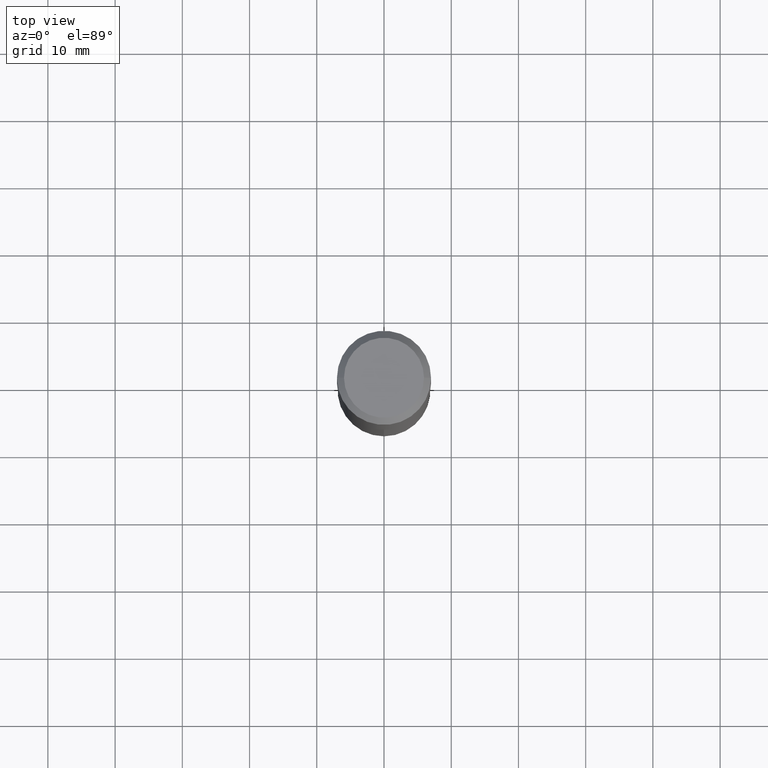
[diagram: clean part render]
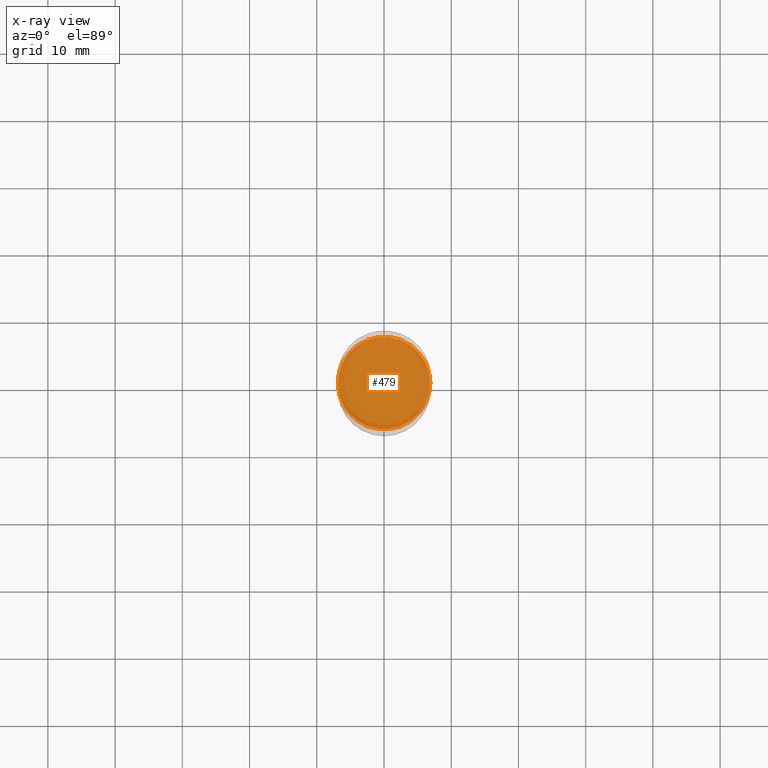
[diagram: x-ray — body ghosted, one internal face saturated and labeled with its STEP entity id]
A machine part, top view, then the same camera in x-ray: the body is ghosted and one INTERNAL B-rep face — a face not visible from any outside direction — is saturated and labeled: STEP entity #479.
In plain terms, the highlighted planar face has unit normal (-0, 0, 1).
Its self-contained STEP definition (entity closure, byte-faithful):
#73 = AXIS2_PLACEMENT_3D ( 'NONE', #102, #145, #407 ) ;
#77 = FACE_OUTER_BOUND ( 'NONE', #217, .T. ) ;
#102 = CARTESIAN_POINT ( 'NONE',  ( 4.525095478964976833E-29, -6.460637069395356787E-15, -1.850400000000000045 ) ) ;
#138 = CARTESIAN_POINT ( 'NONE',  ( 4.525095478964976833E-29, -6.460637069395356787E-15, -1.850400000000000045 ) ) ;
#145 = DIRECTION ( 'NONE',  ( -2.445468806185136597E-29, 3.491481338843145583E-15, 1.000000000000000000 ) ) ;
#155 = DIRECTION ( 'NONE',  ( -2.438088387897960049E-29, 3.491481338843145188E-15, 1.000000000000000000 ) ) ;
#166 = CIRCLE ( 'NONE', #73, 0.2711500000000000021 ) ;
#174 = CIRCLE ( 'NONE', #290, 0.2711500000000000021 ) ;
#217 = EDGE_LOOP ( 'NONE', ( #449, #259 ) ) ;
#226 = EDGE_CURVE ( 'NONE', #342, #314, #166, .T. ) ;
#227 = DIRECTION ( 'NONE',  ( 1.000000000000000000, -6.982962677686265922E-15, 4.876176775795935793E-29 ) ) ;
#258 = DIRECTION ( 'NONE',  ( -2.445468806185136597E-29, 3.491481338843145583E-15, 1.000000000000000000 ) ) ;
#259 = ORIENTED_EDGE ( 'NONE', *, *, #226, .F. ) ;
#290 = AXIS2_PLACEMENT_3D ( 'NONE', #138, #258, #333 ) ;
#312 = EDGE_CURVE ( 'NONE', #314, #342, #174, .T. ) ;
#314 = VERTEX_POINT ( 'NONE', #480 ) ;
#330 = AXIS2_PLACEMENT_3D ( 'NONE', #461, #155, #227 ) ;
#333 = DIRECTION ( 'NONE',  ( 1.000000000000000000, -6.982962677686264344E-15, 0.000000000000000000 ) ) ;
#342 = VERTEX_POINT ( 'NONE', #448 ) ;
#388 = PLANE ( 'NONE',  #330 ) ;
#407 = DIRECTION ( 'NONE',  ( 1.000000000000000000, -6.982962677686264344E-15, 0.000000000000000000 ) ) ;
#448 = CARTESIAN_POINT ( 'NONE',  ( -0.2711500000000000021, -4.531351214207735495E-15, -1.850400000000000045 ) ) ;
#449 = ORIENTED_EDGE ( 'NONE', *, *, #312, .F. ) ;
#461 = CARTESIAN_POINT ( 'NONE',  ( 8.430567376251486457E-29, -8.677790268251705652E-16, -1.850400000000000489 ) ) ;
#479 = ADVANCED_FACE ( 'NONE', ( #77 ), #388, .F. ) ;
#480 = CARTESIAN_POINT ( 'NONE',  ( 0.2711500000000000021, -8.354067399449987400E-15, -1.850400000000000045 ) ) ;